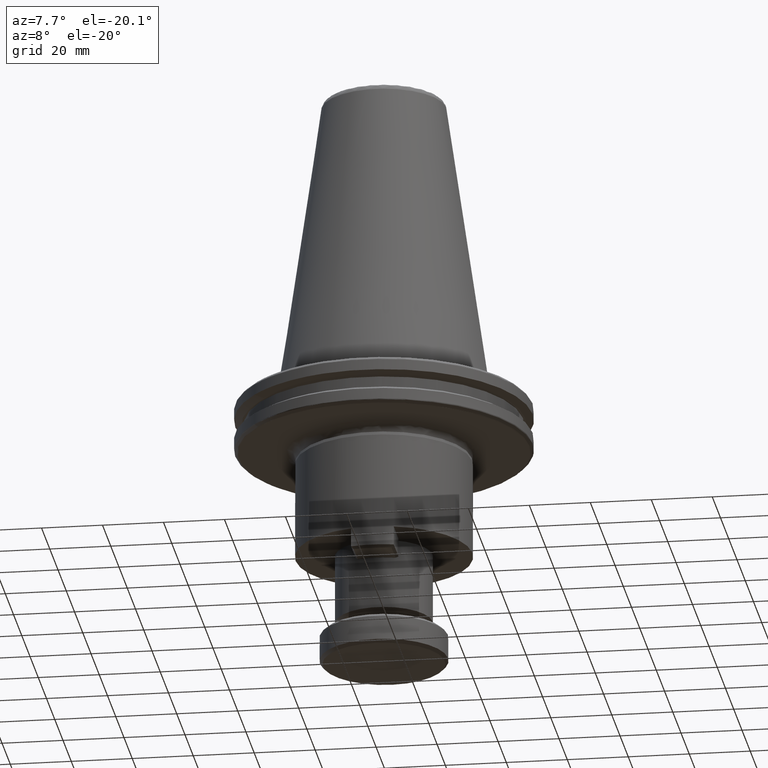
[diagram: clean part render]
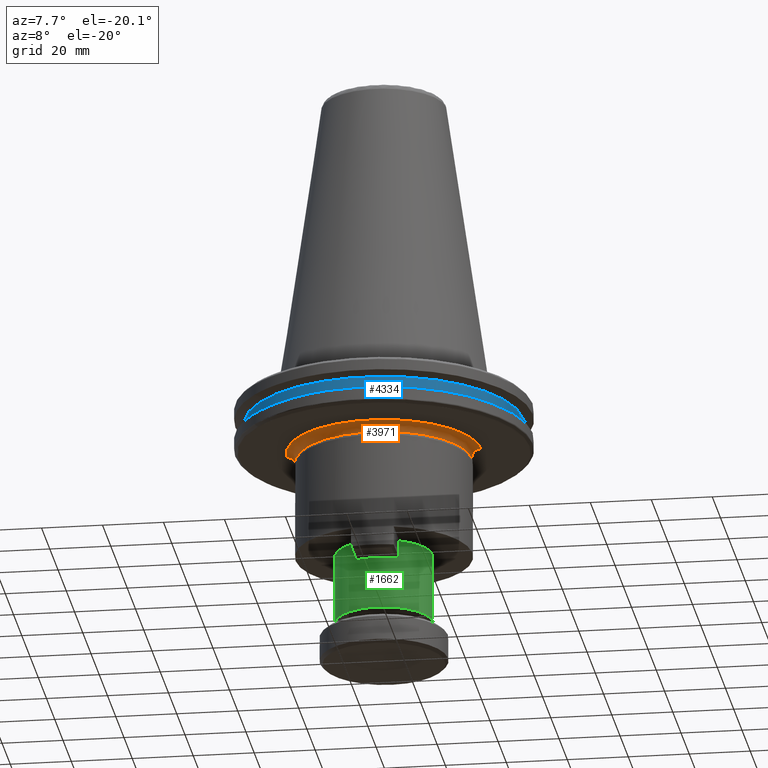
[diagram: same view with three faces highlighted in distinct colors, each labeled with its STEP entity id]
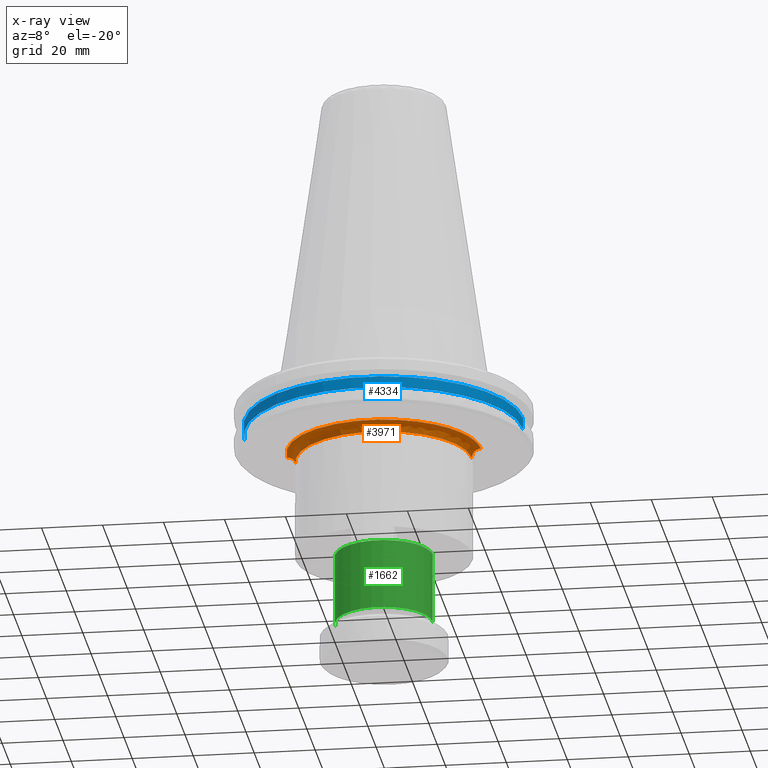
[diagram: x-ray of the same camera — body ghosted, the three highlighted faces saturated]
A machine part, auxiliary view with three faces highlighted in distinct colors.
The next image is the same camera in x-ray (body ghosted, the three faces saturated) — at least one of them is partly hidden behind the body in this view.
Their STEP definitions:

[orange] entity #3971 — the highlighted face is a freeform B-spline surface patch.
#18 = CARTESIAN_POINT ( 'NONE',  ( 112.5986025513973900, 87.84141908095192300, 78.89950277828039300 ) ) ;
#36 = CARTESIAN_POINT ( 'NONE',  ( 117.2195461393438900, 92.79466056364752500, 78.89950277828040700 ) ) ;
#50 = CARTESIAN_POINT ( 'NONE',  ( 121.8435663963486800, 101.4793024308821000, 78.89950277828039300 ) ) ;
#58 = CARTESIAN_POINT ( 'NONE',  ( 123.5890074581841100, 111.8872747687010000, 78.89950277828039300 ) ) ;
#66 = CARTESIAN_POINT ( 'NONE',  ( 123.2839419693878300, 107.4925901327457300, 78.89950277828039300 ) ) ;
#79 = CARTESIAN_POINT ( 'NONE',  ( 61.21239678823766900, 103.1514229404905300, 78.89950277828039300 ) ) ;
#192 = CARTESIAN_POINT ( 'NONE',  ( 60.37655522729893000, 106.8734127467031700, 78.89950277828037900 ) ) ;
#199 = CARTESIAN_POINT ( 'NONE',  ( 59.98900745022476900, 48.28727476070100300, 78.89950277828039300 ) ) ;
#268 = AXIS2_PLACEMENT_3D ( 'NONE', #2820, #495, #3229 ) ;
#274 = CARTESIAN_POINT ( 'NONE',  ( 63.11872705813857500, 98.13007753275378800, 78.89950277828037900 ) ) ;
#289 = CARTESIAN_POINT ( 'NONE',  ( 66.33008361716385100, 92.83252757440128300, 78.89950277828040700 ) ) ;
#306 = CARTESIAN_POINT ( 'NONE',  ( 73.21929999752751400, 86.02224511336628200, 78.89950277828037900 ) ) ;
#322 = CARTESIAN_POINT ( 'NONE',  ( 80.12159250120718900, 82.30489057246593600, 78.89950277828039300 ) ) ;
#341 = CARTESIAN_POINT ( 'NONE',  ( 87.50098356787479800, 80.37597932179846800, 78.89950277828036500 ) ) ;
#358 = CARTESIAN_POINT ( 'NONE',  ( 99.29767052964452000, 80.98636043083064400, 78.89950277828037900 ) ) ;
#374 = CARTESIAN_POINT ( 'NONE',  ( 106.2631590505194800, 83.57150712811841200, 78.89950277828040700 ) ) ;
#382 =( BOUNDED_CURVE ( )  B_SPLINE_CURVE ( 3, ( #4161, #2228, #692, #3415 ),
 .UNSPECIFIED., .F., .F. ) 
 B_SPLINE_CURVE_WITH_KNOTS ( ( 4, 4 ),
 ( 0.0000000000000000000, 1.000000000000000000 ),
 .UNSPECIFIED. ) 
 CURVE ( )  GEOMETRIC_REPRESENTATION_ITEM ( )  RATIONAL_B_SPLINE_CURVE ( ( 0.9565783028739189800, 0.7697947703748102600, 0.7697947701599992000, 0.9565783022294851400 ) ) 
 REPRESENTATION_ITEM ( '' )  );
#390 = CARTESIAN_POINT ( 'NONE',  ( 112.6700552896978400, 87.90348580666348300, 78.89950277828040700 ) ) ;
#409 = CARTESIAN_POINT ( 'NONE',  ( 118.6817087674185000, 94.86321154782993400, 78.89950277828039300 ) ) ;
#422 = CARTESIAN_POINT ( 'NONE',  ( 122.2044897103857400, 102.6049912775898600, 78.89950277828037900 ) ) ;
#439 = CARTESIAN_POINT ( 'NONE',  ( 123.3009134981467400, 107.6164626813694700, 78.89950277828036500 ) ) ;
#495 = DIRECTION ( 'NONE',  ( -0.0000000000000000000, 6.023345402697245500E-017, -1.000000000000000000 ) ) ;
#498 = CARTESIAN_POINT ( 'NONE',  ( 61.51349220860787900, 102.1175205528929800, 78.89950277828042100 ) ) ;
#507 = ORIENTED_EDGE ( 'NONE', *, *, #2321, .F. ) ;
#559 = CARTESIAN_POINT ( 'NONE',  ( 120.5890074542248000, 111.8872747687010000, 75.89950277928039700 ) ) ;
#564 = CARTESIAN_POINT ( 'NONE',  ( 62.98900745422478300, 111.8872747687010000, 75.89950277928039700 ) ) ;
#586 = CARTESIAN_POINT ( 'NONE',  ( 60.26876506959506900, 107.6784205658299700, 78.89950277828039300 ) ) ;
#595 = CARTESIAN_POINT ( 'NONE',  ( 123.5890074582247700, 111.8872747687010000, 78.89950277828037900 ) ) ;
#655 = CARTESIAN_POINT ( 'NONE',  ( 61.24703951264007200, 103.0313007707220100, 78.89950277828037900 ) ) ;
#667 = CARTESIAN_POINT ( 'NONE',  ( 63.18006732528844100, 98.00315930853756200, 78.89950277828037900 ) ) ;
#685 = CARTESIAN_POINT ( 'NONE',  ( 67.01825173743512200, 91.91489070511103400, 78.89950277828043600 ) ) ;
#692 = CARTESIAN_POINT ( 'NONE',  ( 62.98900745322479400, 111.8872747687009900, 77.65686209428039900 ) ) ;
#693 = CARTESIAN_POINT ( 'NONE',  ( 61.23660134831805400, 103.0673280678549300, 78.89950277828040700 ) ) ;
#703 = CARTESIAN_POINT ( 'NONE',  ( 75.89733497766664500, 84.33980737074264800, 78.89950277828040700 ) ) ;
#720 = CARTESIAN_POINT ( 'NONE',  ( 80.87203175368398400, 82.01287826664605500, 78.89950277828040700 ) ) ;
#740 = CARTESIAN_POINT ( 'NONE',  ( 90.46473713084161300, 80.08732030090352800, 78.89950277828042100 ) ) ;
#759 = CARTESIAN_POINT ( 'NONE',  ( 99.53831646137841500, 81.04583229097133300, 78.89950277828037900 ) ) ;
#777 = CARTESIAN_POINT ( 'NONE',  ( 106.6138860550519600, 83.75429905567814600, 78.89950277828039300 ) ) ;
#794 = CARTESIAN_POINT ( 'NONE',  ( 113.5390143234420200, 88.66177598112918200, 78.89950277828037900 ) ) ;
#815 = CARTESIAN_POINT ( 'NONE',  ( 119.9771204604574400, 97.16365722107107700, 78.89950277828039300 ) ) ;
#835 = CARTESIAN_POINT ( 'NONE',  ( 122.2892431783339900, 102.8885607447687000, 78.89950277828039300 ) ) ;
#853 = CARTESIAN_POINT ( 'NONE',  ( 123.3061258207704000, 107.6550948719169000, 78.89950277828040700 ) ) ;
#883 = CARTESIAN_POINT ( 'NONE',  ( 61.25401268472817400, 103.0072855420929200, 78.89950277828039300 ) ) ;
#945 = CARTESIAN_POINT ( 'NONE',  ( 62.98900745422479700, 111.8872747687009900, 75.89950277928039700 ) ) ;
#1053 = CARTESIAN_POINT ( 'NONE',  ( 61.25706237628296000, 102.9968021772588300, 78.89950277828039300 ) ) ;
#1069 = CARTESIAN_POINT ( 'NONE',  ( 63.19782829542786100, 97.96661768452877100, 78.89950277828037900 ) ) ;
#1084 = CARTESIAN_POINT ( 'NONE',  ( 69.44540427576696100, 89.24739054867342200, 78.89950277828039300 ) ) ;
#1098 = CARTESIAN_POINT ( 'NONE',  ( 76.59095265953978100, 83.95397199876183000, 78.89950277828039300 ) ) ;
#1106 = CARTESIAN_POINT ( 'NONE',  ( 62.86655766665573700, 98.66521821340080600, 78.89950277828039300 ) ) ;
#1117 = CARTESIAN_POINT ( 'NONE',  ( 82.86816915559546700, 81.36116782231525200, 78.89950277828037900 ) ) ;
#1132 = CARTESIAN_POINT ( 'NONE',  ( 93.44268562147748000, 80.11816877314029700, 78.89950277828039300 ) ) ;
#1151 = CARTESIAN_POINT ( 'NONE',  ( 101.1756044448316200, 81.49208478704655100, 78.89950277828039300 ) ) ;
#1168 = CARTESIAN_POINT ( 'NONE',  ( 106.7203191832169700, 83.81064243910252300, 78.89950277828040700 ) ) ;
#1179 = CARTESIAN_POINT ( 'NONE',  ( 116.0196585928529800, 91.27959528241073900, 78.89950277828039300 ) ) ;
#1199 = CARTESIAN_POINT ( 'NONE',  ( 120.2759089197635100, 97.75421690095031100, 78.89950277828040700 ) ) ;
#1216 = CARTESIAN_POINT ( 'NONE',  ( 122.3091008892093900, 102.9562033932296000, 78.89950277828039300 ) ) ;
#1234 = CARTESIAN_POINT ( 'NONE',  ( 123.5890074581027700, 110.4735581301570200, 78.89950277828039300 ) ) ;
#1327 = CARTESIAN_POINT ( 'NONE',  ( 120.5890074542247700, 111.8872747687009900, 75.89950277928039700 ) ) ;
#1341 =( BOUNDED_CURVE ( )  B_SPLINE_CURVE ( 3, ( #1363, #3685, #1731, #4439 ),
 .UNSPECIFIED., .F., .F. ) 
 B_SPLINE_CURVE_WITH_KNOTS ( ( 4, 4 ),
 ( 0.0000000000000000000, 1.000000000000000000 ),
 .UNSPECIFIED. ) 
 CURVE ( )  GEOMETRIC_REPRESENTATION_ITEM ( )  RATIONAL_B_SPLINE_CURVE ( ( 0.9565783022294851400, 0.7697947701599992000, 0.7697947703748102600, 0.9565783028739189800 ) ) 
 REPRESENTATION_ITEM ( '' )  );
#1361 = CARTESIAN_POINT ( 'NONE',  ( 120.5890074552247900, 54.28727476770100000, 77.65686209428038500 ) ) ;
#1363 = CARTESIAN_POINT ( 'NONE',  ( 120.5890074542248000, 111.8872747687010000, 75.89950277928039700 ) ) ;
#1373 = CARTESIAN_POINT ( 'NONE',  ( 60.26749768892426600, 107.6879288504847200, 78.89950277828040700 ) ) ;
#1447 = CARTESIAN_POINT ( 'NONE',  ( 64.37163465649150900, 95.72176688695921600, 78.89950277828040700 ) ) ;
#1463 = CARTESIAN_POINT ( 'NONE',  ( 70.51387460995572100, 88.25162601648504800, 78.89950277828039300 ) ) ;
#1477 = CARTESIAN_POINT ( 'NONE',  ( 76.75751564833977600, 83.86414872028382200, 78.89950277828037900 ) ) ;
#1491 = CARTESIAN_POINT ( 'NONE',  ( 83.64792550534993200, 81.14692493672770000, 78.89950277828037900 ) ) ;
#1510 = CARTESIAN_POINT ( 'NONE',  ( 95.09048555364005000, 80.25868065177027700, 78.89950277828040700 ) ) ;
#1527 = CARTESIAN_POINT ( 'NONE',  ( 102.7794897922706700, 82.04610991900733600, 78.89950277828039300 ) ) ;
#1530 = CARTESIAN_POINT ( 'NONE',  ( 61.94582206925736000, 100.8393509591644100, 78.89950277828037900 ) ) ;
#1544 = CARTESIAN_POINT ( 'NONE',  ( 109.3668964200376300, 85.33823378868297000, 78.89950277828039300 ) ) ;
#1557 = CARTESIAN_POINT ( 'NONE',  ( 116.9336715535543600, 92.41881328386266100, 78.89950277828039300 ) ) ;
#1574 = CARTESIAN_POINT ( 'NONE',  ( 120.3455670429598100, 97.89573975765715400, 78.89950277828039300 ) ) ;
#1594 = CARTESIAN_POINT ( 'NONE',  ( 122.5409281050102200, 103.7508993941568700, 78.89950277828037900 ) ) ;
#1729 = CARTESIAN_POINT ( 'NONE',  ( 61.74636676422477400, 111.8872747687009900, 78.89950278028038600 ) ) ;
#1731 = CARTESIAN_POINT ( 'NONE',  ( 121.8316481442247900, 111.8872747687010000, 78.89950278028038600 ) ) ;
#1823 = CARTESIAN_POINT ( 'NONE',  ( 65.82781134795163800, 93.51961226012004100, 78.89950277828039300 ) ) ;
#1837 = CARTESIAN_POINT ( 'NONE',  ( 70.78759244379936900, 88.00877827053251700, 78.89950277828040700 ) ) ;
#1855 = CARTESIAN_POINT ( 'NONE',  ( 77.38237569774739200, 83.53078899036305000, 78.89950277828040700 ) ) ;
#1877 = CARTESIAN_POINT ( 'NONE',  ( 83.88171697060090500, 81.08595454976610000, 78.89950277828040700 ) ) ;
#1892 = CARTESIAN_POINT ( 'NONE',  ( 95.58556797585055200, 80.31429982750988500, 78.89950277828040700 ) ) ;
#1904 = CARTESIAN_POINT ( 'NONE',  ( 59.98900745047825500, 111.1807601529101200, 78.89950277828037900 ) ) ;
#1911 = CARTESIAN_POINT ( 'NONE',  ( 103.1579904867320500, 82.18891571260236600, 78.89950277828040700 ) ) ;
#1916 = VERTEX_POINT ( 'NONE', #564 ) ;
#1936 = CARTESIAN_POINT ( 'NONE',  ( 111.8911993093331300, 87.24361446330540600, 78.89950277828040700 ) ) ;
#1953 = CARTESIAN_POINT ( 'NONE',  ( 117.1556110633311800, 92.70975054507962900, 78.89950277828040700 ) ) ;
#1971 = CARTESIAN_POINT ( 'NONE',  ( 120.3671024622023400, 97.93977845057031600, 78.89950277828040700 ) ) ;
#1984 = CARTESIAN_POINT ( 'NONE',  ( 123.0958767586411100, 106.2833838601220600, 78.89950277828039300 ) ) ;
#2075 = CARTESIAN_POINT ( 'NONE',  ( 62.98900745422479000, 54.28727476870098900, 75.89950277928038200 ) ) ;
#2105 = VERTEX_POINT ( 'NONE', #58 ) ;
#2127 = CARTESIAN_POINT ( 'NONE',  ( 60.26458917440429300, 107.7098229602199800, 78.89950277828037900 ) ) ;
#2137 = CARTESIAN_POINT ( 'NONE',  ( 121.8316481442248000, 51.80199338870100000, 78.89950278028038600 ) ) ;
#2178 = ORIENTED_EDGE ( 'NONE', *, *, #3367, .F. ) ;
#2220 = CARTESIAN_POINT ( 'NONE',  ( 66.21703011886984300, 92.98434129384187900, 78.89950277828040700 ) ) ;
#2228 = CARTESIAN_POINT ( 'NONE',  ( 61.74636676422477400, 111.8872747687010000, 78.89950278028038600 ) ) ;
#2239 = CARTESIAN_POINT ( 'NONE',  ( 70.85315099036685600, 87.95131524423034400, 78.89950277828040700 ) ) ;
#2245 =( BOUNDED_SURFACE ( )  B_SPLINE_SURFACE ( 3, 3, ( 
 ( #945, #2075, #3652, #1327 ),
 ( #4033, #2735, #1361, #4068 ),
 ( #1729, #4436, #2137, #4830 ),
 ( #2510, #199, #2914, #595 ) ),
 .UNSPECIFIED., .F., .F., .T. ) 
 B_SPLINE_SURFACE_WITH_KNOTS ( ( 4, 4 ),
 ( 4, 4 ),
 ( 0.06314145690100071700, 0.9368585441038210800 ),
 ( 0.0000000000000000000, 1.000000000000000000 ),
 .UNSPECIFIED. ) 
 GEOMETRIC_REPRESENTATION_ITEM ( )  RATIONAL_B_SPLINE_SURFACE ( (
 ( 0.9565783022294851400, 0.3188594340764950300, 0.3188594340764950300, 0.9565783022294851400),
 ( 0.7697947701599992000, 0.2565982567199999700, 0.2565982567199999700, 0.7697947701599992000),
 ( 0.7697947703748102600, 0.2565982567916039700, 0.2565982567916039700, 0.7697947703748102600),
 ( 0.9565783028739189800, 0.3188594342913060300, 0.3188594342913060300, 0.9565783028739189800) ) ) 
 REPRESENTATION_ITEM ( '' )  SURFACE ( )  );
#2252 = CARTESIAN_POINT ( 'NONE',  ( 79.24324445106938700, 82.66365189145639600, 78.89950277828042100 ) ) ;
#2266 = CARTESIAN_POINT ( 'NONE',  ( 85.55920949996226500, 80.69130701606012200, 78.89950277828039300 ) ) ;
#2284 = CARTESIAN_POINT ( 'NONE',  ( 97.37286830226339900, 80.56923970442886700, 78.89950277828037900 ) ) ;
#2303 = CARTESIAN_POINT ( 'NONE',  ( 103.8985355888013800, 82.47638018021399400, 78.89950277828040700 ) ) ;
#2318 = CARTESIAN_POINT ( 'NONE',  ( 112.4983426901065300, 87.75485523453566800, 78.89950277828039300 ) ) ;
#2321 = EDGE_CURVE ( 'NONE', #4366, #2105, #3307, .T. ) ;
#2338 = CARTESIAN_POINT ( 'NONE',  ( 117.2080683148261200, 92.77938149957825000, 78.89950277828040700 ) ) ;
#2350 = CARTESIAN_POINT ( 'NONE',  ( 121.3078051436030200, 99.99976109004605000, 78.89950277828037900 ) ) ;
#2366 = CARTESIAN_POINT ( 'NONE',  ( 123.2594881852072500, 107.3193199213846800, 78.89950277828039300 ) ) ;
#2413 = VERTEX_POINT ( 'NONE', #559 ) ;
#2460 = EDGE_CURVE ( 'NONE', #2413, #2105, #1341, .T. ) ;
#2510 = CARTESIAN_POINT ( 'NONE',  ( 59.98900745022477600, 111.8872747687010000, 78.89950277828037900 ) ) ;
#2591 = CARTESIAN_POINT ( 'NONE',  ( 63.03369346132729600, 98.30808475937863000, 78.89950277828039300 ) ) ;
#2610 = CARTESIAN_POINT ( 'NONE',  ( 66.31118975286223400, 92.85779855817025900, 78.89950277828037900 ) ) ;
#2621 = CARTESIAN_POINT ( 'NONE',  ( 71.79185909176798900, 87.13200744749836700, 78.89950277828039300 ) ) ;
#2637 = CARTESIAN_POINT ( 'NONE',  ( 79.97455356953834400, 82.36330636801567100, 78.89950277828037900 ) ) ;
#2645 = CARTESIAN_POINT ( 'NONE',  ( 61.16459229476096500, 103.3197374030632600, 78.89950277828040700 ) ) ;
#2659 = CARTESIAN_POINT ( 'NONE',  ( 87.17786184417060700, 80.42165245890329600, 78.89950277828037900 ) ) ;
#2677 = CARTESIAN_POINT ( 'NONE',  ( 99.05810341507795200, 80.92847115157874800, 78.89950277828037900 ) ) ;
#2690 = CARTESIAN_POINT ( 'NONE',  ( 105.7692337188675800, 83.32209326955371900, 78.89950277828040700 ) ) ;
#2711 = CARTESIAN_POINT ( 'NONE',  ( 112.6414855907308000, 87.87864249942526800, 78.89950277828040700 ) ) ;
#2731 = CARTESIAN_POINT ( 'NONE',  ( 117.8345318013845000, 93.61458374581474100, 78.89950277828037900 ) ) ;
#2735 = CARTESIAN_POINT ( 'NONE',  ( 62.98900745322479400, 54.28727476770100000, 77.65686209428038500 ) ) ;
#2745 = CARTESIAN_POINT ( 'NONE',  ( 122.0880769509945200, 102.2282347247748200, 78.89950277828037900 ) ) ;
#2761 = CARTESIAN_POINT ( 'NONE',  ( 123.2958672771659400, 107.5792910456924700, 78.89950277828042100 ) ) ;
#2820 = CARTESIAN_POINT ( 'NONE',  ( 91.78900745422478700, 111.8872747687010000, 75.89950277928039700 ) ) ;
#2902 = CARTESIAN_POINT ( 'NONE',  ( 60.26024357889374300, 107.7426652142244900, 78.89950277828039300 ) ) ;
#2914 = CARTESIAN_POINT ( 'NONE',  ( 123.5890074582248000, 48.28727476070100300, 78.89950277828039300 ) ) ;
#2999 = CARTESIAN_POINT ( 'NONE',  ( 63.16161028141317500, 98.04121379453798100, 78.89950277828043600 ) ) ;
#3013 = CARTESIAN_POINT ( 'NONE',  ( 66.33855050925303900, 92.82121826741271800, 78.89950277828037900 ) ) ;
#3031 = CARTESIAN_POINT ( 'NONE',  ( 74.98751251809073900, 84.87589172855931000, 78.89950277828036500 ) ) ;
#3049 = CARTESIAN_POINT ( 'NONE',  ( 80.19362941526144100, 82.27657432752931800, 78.89950277828037900 ) ) ;
#3061 = CARTESIAN_POINT ( 'NONE',  ( 89.14343762762308600, 80.16981062332310200, 78.89950277828040700 ) ) ;
#3079 = CARTESIAN_POINT ( 'NONE',  ( 99.45726948614675700, 81.02557904567356700, 78.89950277828037900 ) ) ;
#3104 = CARTESIAN_POINT ( 'NONE',  ( 106.5088575749078800, 83.69903790088724800, 78.89950277828039300 ) ) ;
#3124 = CARTESIAN_POINT ( 'NONE',  ( 112.6854649692561600, 87.91691119808503200, 78.89950277828039300 ) ) ;
#3137 = CARTESIAN_POINT ( 'NONE',  ( 119.5631401815892800, 96.38585656620833200, 78.89950277828039300 ) ) ;
#3154 = CARTESIAN_POINT ( 'NONE',  ( 122.2612354605983600, 102.7939421554644900, 78.89950277828039300 ) ) ;
#3174 = CARTESIAN_POINT ( 'NONE',  ( 123.3042632843095800, 107.6412469055001700, 78.89950277828037900 ) ) ;
#3199 = CARTESIAN_POINT ( 'NONE',  ( 59.98900745483555900, 111.8872747687010000, 78.89950277828039300 ) ) ;
#3229 = DIRECTION ( 'NONE',  ( 0.0000000000000000000, 1.000000000000000000, 0.0000000000000000000 ) ) ;
#3275 = FACE_OUTER_BOUND ( 'NONE', #3469, .T. ) ;
#3307 = B_SPLINE_CURVE_WITH_KNOTS ( 'NONE', 3,
 ( #4996, #1904, #4601, #4584, #4363, #4822, #3699, #2902, #2127, #1373, #586, #192, #4317, #4750, #4462, #2645, #79, #693, #655, #883, #1053, #498, #1530, #3669, #1106, #2591, #274, #2999, #667, #3391, #1069, #3787, #1447, #4157, #1823, #4525, #2220, #4926, #2610, #289, #3013, #685, #3409, #1084, #3800, #1463, #4169, #1837, #4541, #2239, #4945, #2621, #306, #3031, #703, #3421, #1098, #3816, #1477, #4185, #1855, #4554, #2252, #4965, #2637, #322, #3049, #720, #3436, #1117, #3832, #1491, #4197, #1877, #4571, #2266, #4984, #2659, #341, #3061, #740, #3453, #1132, #3850, #1510, #4215, #1892, #4593, #2284, #5003, #2677, #358, #3079, #759, #3476, #1151, #3867, #1527, #4232, #1911, #4608, #2303, #5023, #2690, #374, #3104, #777, #3488, #1168, #3883, #1544, #4244, #1936, #4622, #2318, #18, #2711, #390, #3124, #794, #3506, #1179, #3904, #1557, #4258, #1953, #4643, #2338, #36, #2731, #409, #3137, #815, #3523, #1199, #3914, #1574, #4276, #1971, #4657, #2350, #50, #2745, #422, #3154, #835, #3542, #1216, #3930, #1594, #4297, #1984, #4674, #2366, #66, #2761, #439, #3174, #853, #3561, #1234, #3943 ),
 .UNSPECIFIED., .F., .F.,
 ( 4, 1, 1, 1, 1, 1, 1, 2, 2, 1, 1, 1, 1, 1, 1, 2, 2, 1, 1, 1, 1, 1, 1, 2, 2, 1, 1, 1, 1, 1, 1, 2, 2, 1, 1, 1, 1, 1, 1, 2, 2, 1, 1, 1, 1, 1, 2, 2, 1, 1, 1, 2, 2, 1, 1, 1, 2, 2, 1, 2, 2, 2, 1, 1, 2, 2, 1, 1, 1, 2, 2, 1, 1, 1, 2, 2, 1, 1, 1, 1, 2, 2, 1, 1, 1, 1, 1, 1, 2, 2, 1, 1, 1, 1, 1, 1, 2, 2, 1, 1, 1, 1, 1, 1, 2, 2, 1, 1, 1, 1, 1, 1, 2, 2, 1, 1, 1, 1, 1, 1, 2, 2, 4 ),
 ( 0.0000000000000000000, 0.03125000000000199800, 0.04687500000000298400, 0.05468750000000346300, 0.05859375000000368500, 0.06054687500000349000, 0.06152343750000341400, 0.06201171875000367800, 0.06250000000000394100, 0.09375000000003065600, 0.1093750000000437200, 0.1171875000000502400, 0.1210937500000532100, 0.1230468750000547300, 0.1240234375000552300, 0.1245117187500554400, 0.1250000000000556500, 0.1562500000000740000, 0.1718750000000834300, 0.1796875000000880100, 0.1835937500000904000, 0.1855468750000918200, 0.1865234375000925100, 0.1870117187500928700, 0.1875000000000932300, 0.2187500000001096900, 0.2343750000001180200, 0.2421875000001222400, 0.2460937500001241800, 0.2480468750001251200, 0.2490234375001254600, 0.2495117187501254800, 0.2500000000001255100, 0.2812500000001287300, 0.2968750000001304500, 0.3046875000001314500, 0.3085937500001318400, 0.3105468750001318900, 0.3115234375001320600, 0.3120117187501321200, 0.3125000000001322300, 0.3437500000001307800, 0.3593750000001300600, 0.3671875000001297900, 0.3710937500001295600, 0.3730468750001295600, 0.3740234375001295600, 0.3750000000001295600, 0.3906250000001347300, 0.3984375000001372800, 0.4023437500001386100, 0.4042968750001390600, 0.4062500000001395000, 0.4218750000001428300, 0.4296875000001445500, 0.4335937500001453300, 0.4355468750001455500, 0.4375000000001457700, 0.4531250000001477200, 0.4609375000001484900, 0.4687500000001492700, 0.5000000000001524300, 0.5156250000001539900, 0.5234375000001546500, 0.5273437500001547700, 0.5312500000001548800, 0.5468750000001546500, 0.5546875000001544300, 0.5585937500001541000, 0.5605468750001538800, 0.5625000000001536500, 0.5781250000001512100, 0.5859375000001499900, 0.5898437500001495500, 0.5917968750001494400, 0.5937500000001493200, 0.6093750000001487700, 0.6171875000001484400, 0.6210937500001483300, 0.6230468750001484400, 0.6240234375001484400, 0.6250000000001485500, 0.6562500000001505500, 0.6718750000001515500, 0.6796875000001519900, 0.6835937500001518800, 0.6855468750001518800, 0.6865234375001518800, 0.6870117187501521000, 0.6875000000001522100, 0.7187500000001733100, 0.7343750000001837400, 0.7421875000001887400, 0.7460937500001912900, 0.7480468750001927300, 0.7490234375001934000, 0.7495117187501937300, 0.7500000000001939600, 0.7812500000001924000, 0.7968750000001915100, 0.8046875000001911800, 0.8085937500001911800, 0.8105468750001911800, 0.8115234375001909600, 0.8120117187501906300, 0.8125000000001901800, 0.8437500000001675300, 0.8593750000001562100, 0.8671875000001506600, 0.8710937500001476600, 0.8730468750001461100, 0.8740234375001450000, 0.8745117187501446600, 0.8750000000001442200, 0.9062500000000993600, 0.9218750000000771600, 0.9296875000000663900, 0.9335937500000609500, 0.9355468750000585100, 0.9365234375000569500, 0.9370117187500565100, 0.9375000000000559600, 1.000000000000000000 ),
 .UNSPECIFIED. ) ;
#3367 = EDGE_CURVE ( 'NONE', #2413, #1916, #3709, .T. ) ;
#3391 = CARTESIAN_POINT ( 'NONE',  ( 63.19238947000857800, 97.97779631192287300, 78.89950277828037900 ) ) ;
#3409 = CARTESIAN_POINT ( 'NONE',  ( 68.08648632202231000, 90.63573964533313200, 78.89950277828040700 ) ) ;
#3415 = CARTESIAN_POINT ( 'NONE',  ( 62.98900745422478300, 111.8872747687010000, 75.89950277928039700 ) ) ;
#3421 = CARTESIAN_POINT ( 'NONE',  ( 76.35867525727816500, 84.08103827548096400, 78.89950277828039300 ) ) ;
#3436 = CARTESIAN_POINT ( 'NONE',  ( 81.78583844089178000, 81.68938858501414300, 78.89950277828039300 ) ) ;
#3453 = CARTESIAN_POINT ( 'NONE',  ( 92.45114261591059800, 80.08725199697799700, 78.89950277828040700 ) ) ;
#3469 = EDGE_LOOP ( 'NONE', ( #4242, #2178, #4271, #507 ) ) ;
#3476 = CARTESIAN_POINT ( 'NONE',  ( 100.2437661744946100, 81.22496840399065800, 78.89950277828037900 ) ) ;
#3488 = CARTESIAN_POINT ( 'NONE',  ( 106.6838448446034300, 83.79127429427623500, 78.89950277828043600 ) ) ;
#3506 = CARTESIAN_POINT ( 'NONE',  ( 114.7356290626169700, 89.82169298853230500, 78.89950277828039300 ) ) ;
#3523 = CARTESIAN_POINT ( 'NONE',  ( 120.1774267428372100, 97.55667708492082100, 78.89950277828037900 ) ) ;
#3542 = CARTESIAN_POINT ( 'NONE',  ( 122.3011682379269300, 102.9291422438347800, 78.89950277828039300 ) ) ;
#3561 = CARTESIAN_POINT ( 'NONE',  ( 123.4952021483138100, 109.0664784839732800, 78.89950277828039300 ) ) ;
#3652 = CARTESIAN_POINT ( 'NONE',  ( 120.5890074542247800, 54.28727476870098900, 75.89950277928038200 ) ) ;
#3669 = CARTESIAN_POINT ( 'NONE',  ( 62.54401167311708300, 99.38396112453526100, 78.89950277828037900 ) ) ;
#3685 = CARTESIAN_POINT ( 'NONE',  ( 120.5890074552248200, 111.8872747687009900, 77.65686209428039900 ) ) ;
#3699 = CARTESIAN_POINT ( 'NONE',  ( 60.25022408992123200, 107.8193047660464000, 78.89950277828039300 ) ) ;
#3709 = CIRCLE ( 'NONE', #268, 28.79999999999999400 ) ;
#3787 = CARTESIAN_POINT ( 'NONE',  ( 63.64694530830303200, 97.04528310528036200, 78.89950277828040700 ) ) ;
#3800 = CARTESIAN_POINT ( 'NONE',  ( 70.15302432057086400, 88.57921445194723700, 78.89950277828039300 ) ) ;
#3816 = CARTESIAN_POINT ( 'NONE',  ( 76.69084453103535300, 83.90001179536328400, 78.89950277828037900 ) ) ;
#3832 = CARTESIAN_POINT ( 'NONE',  ( 83.41339024118752800, 81.20935340743375300, 78.89950277828040700 ) ) ;
#3850 = CARTESIAN_POINT ( 'NONE',  ( 94.59658125494529200, 80.20840246954847400, 78.89950277828039300 ) ) ;
#3867 = CARTESIAN_POINT ( 'NONE',  ( 102.2474167360434600, 81.85318997391443900, 78.89950277828039300 ) ) ;
#3883 = CARTESIAN_POINT ( 'NONE',  ( 107.8223263022060200, 84.39833273607439400, 78.89950277828042100 ) ) ;
#3904 = CARTESIAN_POINT ( 'NONE',  ( 116.6336681082706100, 92.03471287566029000, 78.89950277828039300 ) ) ;
#3914 = CARTESIAN_POINT ( 'NONE',  ( 120.3247322671607800, 97.85324427999117300, 78.89950277828039300 ) ) ;
#3930 = CARTESIAN_POINT ( 'NONE',  ( 122.3135086977101500, 102.9712806328614800, 78.89950277828039300 ) ) ;
#3943 = CARTESIAN_POINT ( 'NONE',  ( 123.5890074581841100, 111.8872747687010000, 78.89950277828039300 ) ) ;
#3971 = ADVANCED_FACE ( 'NONE', ( #3275 ), #2245, .F. ) ;
#4033 = CARTESIAN_POINT ( 'NONE',  ( 62.98900745322479400, 111.8872747687009800, 77.65686209428038500 ) ) ;
#4068 = CARTESIAN_POINT ( 'NONE',  ( 120.5890074552248200, 111.8872747687009800, 77.65686209428038500 ) ) ;
#4109 = EDGE_CURVE ( 'NONE', #4366, #1916, #382, .T. ) ;
#4157 = CARTESIAN_POINT ( 'NONE',  ( 65.32451718107159900, 94.24280677809285600, 78.89950277828040700 ) ) ;
#4161 = CARTESIAN_POINT ( 'NONE',  ( 59.98900745483555900, 111.8872747687010000, 78.89950277828039300 ) ) ;
#4169 = CARTESIAN_POINT ( 'NONE',  ( 70.69605982139386000, 88.08945670197910300, 78.89950277828036500 ) ) ;
#4185 = CARTESIAN_POINT ( 'NONE',  ( 76.78942193712779800, 83.84705512633507900, 78.89950277828039300 ) ) ;
#4197 = CARTESIAN_POINT ( 'NONE',  ( 83.80447547804108400, 81.10589147846974400, 78.89950277828042100 ) ) ;
#4215 = CARTESIAN_POINT ( 'NONE',  ( 95.41961677468926000, 80.29477868392857000, 78.89950277828040700 ) ) ;
#4232 = CARTESIAN_POINT ( 'NONE',  ( 103.0066997257868900, 82.13144004225982500, 78.89950277828042100 ) ) ;
#4242 = ORIENTED_EDGE ( 'NONE', *, *, #4109, .T. ) ;
#4244 = CARTESIAN_POINT ( 'NONE',  ( 111.0667835668926800, 86.58367292104485100, 78.89950277828037900 ) ) ;
#4258 = CARTESIAN_POINT ( 'NONE',  ( 117.0819229480899800, 92.61249889085820500, 78.89950277828037900 ) ) ;
#4271 = ORIENTED_EDGE ( 'NONE', *, *, #2460, .T. ) ;
#4276 = CARTESIAN_POINT ( 'NONE',  ( 120.3594370010607500, 97.92408233662621300, 78.89950277828039300 ) ) ;
#4297 = CARTESIAN_POINT ( 'NONE',  ( 122.8326915992652900, 104.9119629968490600, 78.89950277828040700 ) ) ;
#4317 = CARTESIAN_POINT ( 'NONE',  ( 60.57997712185203900, 105.6936003013050100, 78.89950277828036500 ) ) ;
#4363 = CARTESIAN_POINT ( 'NONE',  ( 60.19347370487997000, 108.2793555996959300, 78.89950277828043600 ) ) ;
#4366 = VERTEX_POINT ( 'NONE', #3199 ) ;
#4436 = CARTESIAN_POINT ( 'NONE',  ( 61.74636676422479600, 51.80199338870100000, 78.89950278028038600 ) ) ;
#4439 = CARTESIAN_POINT ( 'NONE',  ( 123.5890074581841100, 111.8872747687010000, 78.89950277828039300 ) ) ;
#4462 = CARTESIAN_POINT ( 'NONE',  ( 61.07140181454371900, 103.6568651974152100, 78.89950277828040700 ) ) ;
#4525 = CARTESIAN_POINT ( 'NONE',  ( 66.08617165753916800, 93.16208638524878400, 78.89950277828039300 ) ) ;
#4541 = CARTESIAN_POINT ( 'NONE',  ( 70.82691499983454300, 87.97428884829962200, 78.89950277828039300 ) ) ;
#4554 = CARTESIAN_POINT ( 'NONE',  ( 78.23151952882368200, 83.10989524730062800, 78.89950277828037900 ) ) ;
#4571 = CARTESIAN_POINT ( 'NONE',  ( 84.59810054565133400, 80.90399033364951700, 78.89950277828040700 ) ) ;
#4584 = CARTESIAN_POINT ( 'NONE',  ( 60.12678398827498700, 108.8933261051437300, 78.89950277828037900 ) ) ;
#4593 = CARTESIAN_POINT ( 'NONE',  ( 96.40043073968526200, 80.41652860047280200, 78.89950277828039300 ) ) ;
#4601 = CARTESIAN_POINT ( 'NONE',  ( 60.02418442975115900, 110.1232193237482400, 78.89950277828037900 ) ) ;
#4608 = CARTESIAN_POINT ( 'NONE',  ( 103.2353164389259300, 82.21863658833035500, 78.89950277828042100 ) ) ;
#4622 = CARTESIAN_POINT ( 'NONE',  ( 112.2970252228065200, 87.58289072845559500, 78.89950277828042100 ) ) ;
#4643 = CARTESIAN_POINT ( 'NONE',  ( 117.1870979165718000, 92.75151743632955000, 78.89950277828039300 ) ) ;
#4657 = CARTESIAN_POINT ( 'NONE',  ( 120.7684552524715100, 98.76299407838554600, 78.89950277828040700 ) ) ;
#4674 = CARTESIAN_POINT ( 'NONE',  ( 123.2081679423486000, 106.9733059567916100, 78.89950277828039300 ) ) ;
#4750 = CARTESIAN_POINT ( 'NONE',  ( 60.89469488105378800, 104.3331162629444400, 78.89950277828039300 ) ) ;
#4822 = CARTESIAN_POINT ( 'NONE',  ( 60.23066604751817700, 107.9726143729356700, 78.89950277828039300 ) ) ;
#4830 = CARTESIAN_POINT ( 'NONE',  ( 121.8316481442247900, 111.8872747687009900, 78.89950278028038600 ) ) ;
#4926 = CARTESIAN_POINT ( 'NONE',  ( 66.28287892616938800, 92.89572320964570900, 78.89950277828040700 ) ) ;
#4945 = CARTESIAN_POINT ( 'NONE',  ( 70.86516152502018400, 87.94081383142744800, 78.89950277828039300 ) ) ;
#4965 = CARTESIAN_POINT ( 'NONE',  ( 79.75437119202298700, 82.45173004963307100, 78.89950277828036500 ) ) ;
#4984 = CARTESIAN_POINT ( 'NONE',  ( 86.52921473563857500, 80.52352715431952400, 78.89950277828039300 ) ) ;
#4996 = CARTESIAN_POINT ( 'NONE',  ( 59.98900745483555900, 111.8872747687010000, 78.89950277828039300 ) ) ;
#5003 = CARTESIAN_POINT ( 'NONE',  ( 98.49793272239662700, 80.79996666774526700, 78.89950277828036500 ) ) ;
#5023 = CARTESIAN_POINT ( 'NONE',  ( 104.7712699240631900, 82.84585630031649800, 78.89950277828036500 ) ) ;

[blue] entity #4334 — the highlighted cylindrical surface (partial cylindrical patch) has radius 45.625 mm, axis along (0, 0, 1).
#96 = EDGE_LOOP ( 'NONE', ( #528, #3812, #1579, #1459 ) ) ;
#528 = ORIENTED_EDGE ( 'NONE', *, *, #3705, .F. ) ;
#647 = CARTESIAN_POINT ( 'NONE',  ( 137.4140074542247900, 111.8872747687010000, 88.77450277654092800 ) ) ;
#863 = DIRECTION ( 'NONE',  ( 0.0000000000000000000, 0.0000000000000000000, 1.000000000000000000 ) ) ;
#974 = VERTEX_POINT ( 'NONE', #1771 ) ;
#1086 = EDGE_CURVE ( 'NONE', #2913, #974, #1479, .T. ) ;
#1197 = CARTESIAN_POINT ( 'NONE',  ( 46.16400745422478000, 111.8872747687010000, 85.02450277815540900 ) ) ;
#1459 = ORIENTED_EDGE ( 'NONE', *, *, #2911, .T. ) ;
#1479 = CIRCLE ( 'NONE', #1841, 45.62500000000001400 ) ;
#1579 = ORIENTED_EDGE ( 'NONE', *, *, #2030, .T. ) ;
#1592 = DIRECTION ( 'NONE',  ( -0.0000000000000000000, -0.0000000000000000000, -1.000000000000000000 ) ) ;
#1616 = CARTESIAN_POINT ( 'NONE',  ( 91.78900745422478700, 111.8872747687010000, 85.02450277828040700 ) ) ;
#1645 = CARTESIAN_POINT ( 'NONE',  ( 46.16400745422478000, 111.8872747687010000, 88.77450277654092800 ) ) ;
#1771 = CARTESIAN_POINT ( 'NONE',  ( 137.4140074542247900, 111.8872747687010000, 85.02450277815540900 ) ) ;
#1841 = AXIS2_PLACEMENT_3D ( 'NONE', #3026, #2842, #2859 ) ;
#1906 = CARTESIAN_POINT ( 'NONE',  ( 46.16400745422478000, 111.8872747687010000, 85.02450277828040700 ) ) ;
#2030 = EDGE_CURVE ( 'NONE', #974, #3575, #4767, .T. ) ;
#2234 = AXIS2_PLACEMENT_3D ( 'NONE', #1616, #863, #3952 ) ;
#2296 = DIRECTION ( 'NONE',  ( 0.0000000000000000000, 0.0000000000000000000, 1.000000000000000000 ) ) ;
#2733 = CARTESIAN_POINT ( 'NONE',  ( 137.4140074542247900, 111.8872747687010000, 85.02450277828040700 ) ) ;
#2842 = DIRECTION ( 'NONE',  ( 0.0000000000000000000, 0.0000000000000000000, 1.000000000000000000 ) ) ;
#2852 = CYLINDRICAL_SURFACE ( 'NONE', #2234, 45.62500000000001400 ) ;
#2859 = DIRECTION ( 'NONE',  ( 1.000000000000000000, 0.0000000000000000000, 0.0000000000000000000 ) ) ;
#2885 = FACE_OUTER_BOUND ( 'NONE', #96, .T. ) ;
#2911 = EDGE_CURVE ( 'NONE', #3575, #3351, #4107, .T. ) ;
#2913 = VERTEX_POINT ( 'NONE', #1197 ) ;
#3026 = CARTESIAN_POINT ( 'NONE',  ( 91.78900745422478700, 111.8872747687010000, 85.02450277815540900 ) ) ;
#3082 = DIRECTION ( 'NONE',  ( 0.0000000000000000000, 0.0000000000000000000, 1.000000000000000000 ) ) ;
#3192 = AXIS2_PLACEMENT_3D ( 'NONE', #3929, #1592, #4295 ) ;
#3351 = VERTEX_POINT ( 'NONE', #1645 ) ;
#3456 = VECTOR ( 'NONE', #2296, 1000.000000000000000 ) ;
#3462 = LINE ( 'NONE', #1906, #3456 ) ;
#3575 = VERTEX_POINT ( 'NONE', #647 ) ;
#3705 = EDGE_CURVE ( 'NONE', #2913, #3351, #3462, .T. ) ;
#3812 = ORIENTED_EDGE ( 'NONE', *, *, #1086, .T. ) ;
#3929 = CARTESIAN_POINT ( 'NONE',  ( 91.78900745422478700, 111.8872747687010000, 88.77450277654092800 ) ) ;
#3952 = DIRECTION ( 'NONE',  ( 1.000000000000000000, 0.0000000000000000000, 0.0000000000000000000 ) ) ;
#4107 = CIRCLE ( 'NONE', #3192, 45.62500000000001400 ) ;
#4295 = DIRECTION ( 'NONE',  ( 1.000000000000000000, 0.0000000000000000000, 0.0000000000000000000 ) ) ;
#4334 = ADVANCED_FACE ( 'NONE', ( #2885 ), #2852, .T. ) ;
#4706 = VECTOR ( 'NONE', #3082, 1000.000000000000000 ) ;
#4767 = LINE ( 'NONE', #2733, #4706 ) ;

[green] entity #1662 — the highlighted cylindrical surface (partial cylindrical patch) has radius 16 mm, axis along (0, -0, 1).
#14 = CARTESIAN_POINT ( 'NONE',  ( 91.78900745422478700, 111.8872747687010000, 42.99950278251525000 ) ) ;
#103 = CYLINDRICAL_SURFACE ( 'NONE', #3075, 16.00000000000000000 ) ;
#203 = FACE_OUTER_BOUND ( 'NONE', #2924, .T. ) ;
#301 = EDGE_CURVE ( 'NONE', #2644, #472, #2872, .T. ) ;
#387 = DIRECTION ( 'NONE',  ( -1.000000000000000000, 0.0000000000000000000, 0.0000000000000000000 ) ) ;
#472 = VERTEX_POINT ( 'NONE', #2424 ) ;
#574 = AXIS2_PLACEMENT_3D ( 'NONE', #14, #2709, #387 ) ;
#941 = EDGE_CURVE ( 'NONE', #2644, #2891, #1488, .T. ) ;
#1163 = ORIENTED_EDGE ( 'NONE', *, *, #4603, .T. ) ;
#1181 = CARTESIAN_POINT ( 'NONE',  ( 107.7890074542247900, 111.8872747687010000, 19.84950277828040300 ) ) ;
#1332 = DIRECTION ( 'NONE',  ( 0.0000000000000000000, -0.0000000000000000000, 1.000000000000000000 ) ) ;
#1428 = DIRECTION ( 'NONE',  ( 1.000000000000000000, 0.0000000000000000000, 0.0000000000000000000 ) ) ;
#1444 = DIRECTION ( 'NONE',  ( 0.0000000000000000000, -0.0000000000000000000, 1.000000000000000000 ) ) ;
#1488 = CIRCLE ( 'NONE', #2459, 16.00000000000000000 ) ;
#1526 = CARTESIAN_POINT ( 'NONE',  ( 91.78900745422478700, 111.8872747687010000, 19.84950277828040300 ) ) ;
#1662 = ADVANCED_FACE ( 'NONE', ( #203 ), #103, .T. ) ;
#2283 = ORIENTED_EDGE ( 'NONE', *, *, #2845, .F. ) ;
#2348 = ORIENTED_EDGE ( 'NONE', *, *, #941, .T. ) ;
#2424 = CARTESIAN_POINT ( 'NONE',  ( 75.78900745422478700, 111.8872747687010000, 42.99950278251525000 ) ) ;
#2459 = AXIS2_PLACEMENT_3D ( 'NONE', #1526, #1444, #1428 ) ;
#2644 = VERTEX_POINT ( 'NONE', #4428 ) ;
#2652 = VECTOR ( 'NONE', #3905, 1000.000000000000000 ) ;
#2709 = DIRECTION ( 'NONE',  ( -0.0000000000000000000, -0.0000000000000000000, 1.000000000000000000 ) ) ;
#2715 = LINE ( 'NONE', #1181, #2652 ) ;
#2821 = VECTOR ( 'NONE', #1332, 1000.000000000000000 ) ;
#2845 = EDGE_CURVE ( 'NONE', #472, #4006, #4049, .T. ) ;
#2872 = LINE ( 'NONE', #4379, #2821 ) ;
#2891 = VERTEX_POINT ( 'NONE', #3504 ) ;
#2924 = EDGE_LOOP ( 'NONE', ( #4357, #2348, #1163, #2283 ) ) ;
#2934 = CARTESIAN_POINT ( 'NONE',  ( 107.7890074542247900, 111.8872747687010000, 42.99950278251525000 ) ) ;
#2944 = DIRECTION ( 'NONE',  ( 0.0000000000000000000, -0.0000000000000000000, 1.000000000000000000 ) ) ;
#2985 = CARTESIAN_POINT ( 'NONE',  ( 91.78900745422478700, 111.8872747687010000, 19.84950277828040300 ) ) ;
#3075 = AXIS2_PLACEMENT_3D ( 'NONE', #2985, #2944, #5022 ) ;
#3504 = CARTESIAN_POINT ( 'NONE',  ( 107.7890074542247900, 111.8872747687010000, 19.84950277828040300 ) ) ;
#3905 = DIRECTION ( 'NONE',  ( 0.0000000000000000000, -0.0000000000000000000, 1.000000000000000000 ) ) ;
#4006 = VERTEX_POINT ( 'NONE', #2934 ) ;
#4049 = CIRCLE ( 'NONE', #574, 16.00000000000000000 ) ;
#4357 = ORIENTED_EDGE ( 'NONE', *, *, #301, .F. ) ;
#4379 = CARTESIAN_POINT ( 'NONE',  ( 75.78900745422478700, 111.8872747687010000, 19.84950277828040300 ) ) ;
#4428 = CARTESIAN_POINT ( 'NONE',  ( 75.78900745422478700, 111.8872747687010000, 19.84950277828040300 ) ) ;
#4603 = EDGE_CURVE ( 'NONE', #2891, #4006, #2715, .T. ) ;
#5022 = DIRECTION ( 'NONE',  ( 1.000000000000000000, 0.0000000000000000000, 0.0000000000000000000 ) ) ;